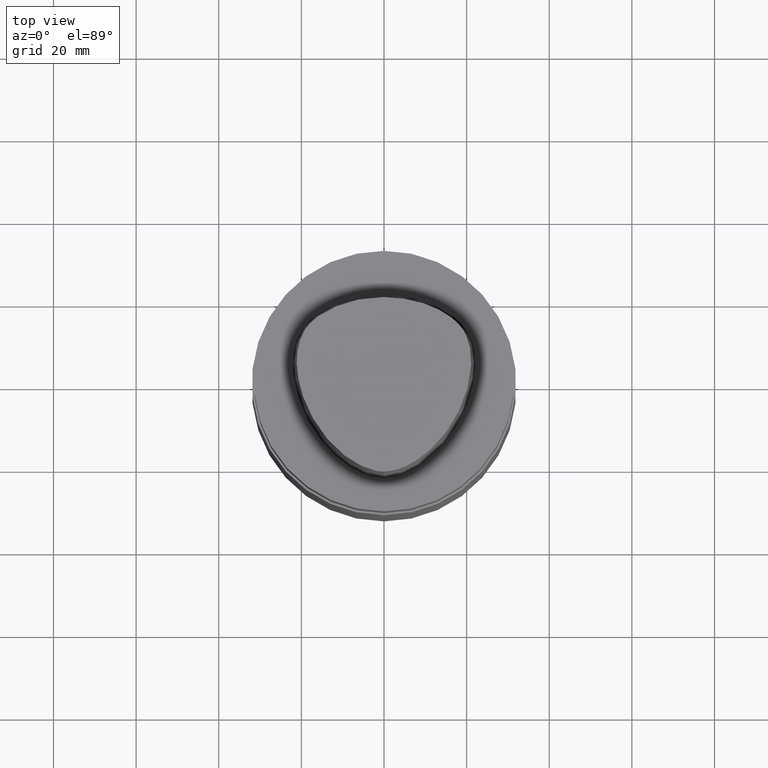
[diagram: clean part render]
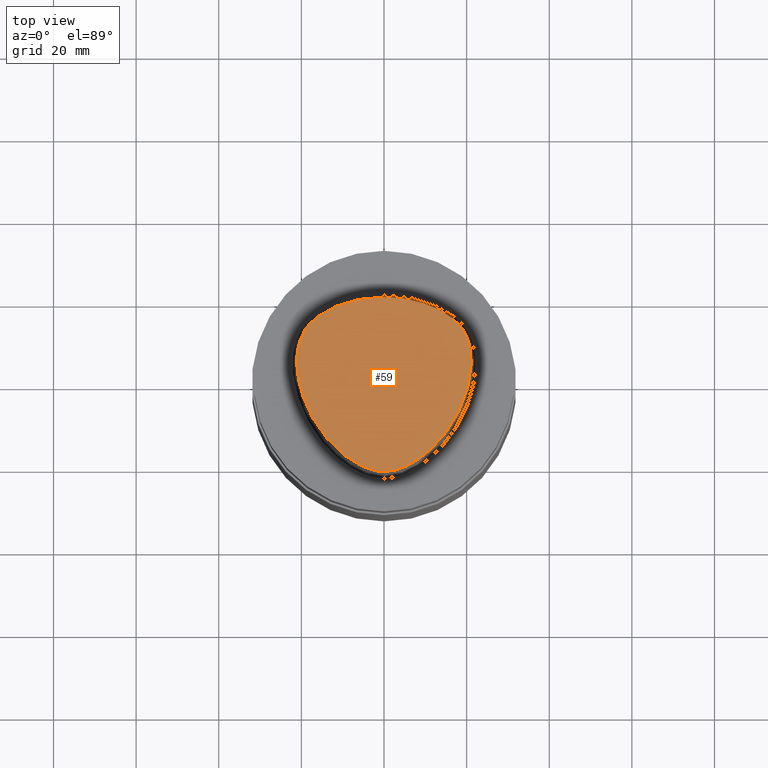
[diagram: same view with one face highlighted and labeled with its STEP entity id]
A machine part, top view. The second image highlights one B-rep face of the part: STEP entity #59.
In plain terms, the highlighted planar face has unit normal (-0, 0, 1).
Its self-contained STEP definition (entity closure, byte-faithful):
#56=EDGE_CURVE('Unnamed[1]',#136,#133,#137,.T.);
#59=ADVANCED_FACE('Unnamed[1]',(#140),#141,.T.);
#94=EDGE_CURVE('Unnamed[1]',#133,#136,#188,.T.);
#133=VERTEX_POINT('',#260);
#136=VERTEX_POINT('',#265);
#137=B_SPLINE_CURVE_WITH_KNOTS('',3,(#266,#267,#268,#269,#270,#271,#272,#273,#274,#275,#276,#277,#278,#279,#280,#281),.UNSPECIFIED.,.F.,.F.,(4,1,1,1,1,1,1,1,1,1,1,1,1,4),(0.0,0.447924670568964,0.9388024242536,1.50591409090711,2.07314340012323,2.72424957442464,3.2253501842849,3.80982102049476,4.34867996267067,4.85900173381144,5.37972031856977,6.03459825488646,6.61113557741484,6.61513393087395),.UNSPECIFIED.);
#140=FACE_OUTER_BOUND('',#285,.T.);
#141=PLANE('',#286);
#188=B_SPLINE_CURVE_WITH_KNOTS('',3,(#419,#420,#421,#422,#423,#424,#425,#426,#427,#428,#429,#430,#431,#432,#433,#434),.UNSPECIFIED.,.F.,.F.,(4,1,1,1,1,1,1,1,1,1,1,1,1,4),(6.61513393087476,6.99917207152274,7.48193246986995,7.96289324787093,8.45540287038584,9.10291653679981,9.67129810936083,10.1618749681153,10.6358867802489,11.1080734988593,11.6043706019633,12.09451993853,12.6985979284494,13.2302678617486),.UNSPECIFIED.);
#260=CARTESIAN_POINT('',(0.038736923393866,-22.5191997536361,38.0));
#265=CARTESIAN_POINT('',(-0.001218547003662,19.7276821925089,38.0));
#266=CARTESIAN_POINT('',(-0.001218547003662,19.7276821925089,38.0));
#267=CARTESIAN_POINT('',(-1.49408492138443,19.6585333605309,38.0));
#268=CARTESIAN_POINT('',(-4.62297391420352,19.513604770166,38.0));
#269=CARTESIAN_POINT('',(-9.56160616752212,18.4291575730197,38.0));
#270=CARTESIAN_POINT('',(-14.5427684976927,16.2697452580488,38.0));
#271=CARTESIAN_POINT('',(-19.4315563551602,12.5302108980807,38.0));
#272=CARTESIAN_POINT('',(-21.306358833612,6.76352894547076,38.0));
#273=CARTESIAN_POINT('',(-21.0724946936277,0.957075236984038,38.0));
#274=CARTESIAN_POINT('',(-19.7876470880144,-4.34628503581652,38.0));
#275=CARTESIAN_POINT('',(-17.5396999600095,-9.33314444653089,38.0));
#276=CARTESIAN_POINT('',(-14.645447733857,-13.7185760345629,38.0));
#277=CARTESIAN_POINT('',(-10.7996726536643,-17.856257282137,38.0));
#278=CARTESIAN_POINT('',(-6.00479510196376,-21.2687382067675,38.0));
#279=CARTESIAN_POINT('',(-1.90747171908525,-22.5250621415864,38.0));
#280=CARTESIAN_POINT('',(0.025424107066464,-22.5192678176378,38.0));
#281=CARTESIAN_POINT('',(0.038736923394311,-22.519199753636,38.0));
#285=EDGE_LOOP('',(#529,#530));
#286=AXIS2_PLACEMENT_3D('',#531,#532,#533);
#419=CARTESIAN_POINT('',(0.038736923394311,-22.519199753636,38.0));
#420=CARTESIAN_POINT('',(1.31742058183662,-22.512662269405,38.0));
#421=CARTESIAN_POINT('',(4.2093773447498,-21.9116226439989,38.0));
#422=CARTESIAN_POINT('',(8.20895504542113,-19.7798683845067,38.0));
#423=CARTESIAN_POINT('',(11.9784633234593,-16.681663904162,38.0));
#424=CARTESIAN_POINT('',(15.5308821579362,-12.5807487594113,38.0));
#425=CARTESIAN_POINT('',(18.4566248438667,-7.64932246015528,38.0));
#426=CARTESIAN_POINT('',(20.4036090752029,-2.27012499825289,38.0));
#427=CARTESIAN_POINT('',(21.2357187429189,2.79891401173156,38.0));
#428=CARTESIAN_POINT('',(21.0811206267748,7.62543090736657,38.0));
#429=CARTESIAN_POINT('',(19.3383577336563,12.2772250726194,38.0));
#430=CARTESIAN_POINT('',(15.5796322014404,15.5799672120682,38.0));
#431=CARTESIAN_POINT('',(10.8392956074438,17.9834601687347,38.0));
#432=CARTESIAN_POINT('',(5.56068045850571,19.4586143858472,38.0));
#433=CARTESIAN_POINT('',(1.77223893711014,19.6418877095654,38.0));
#434=CARTESIAN_POINT('',(-0.001218367817519,19.7276822012873,38.0));
#529=ORIENTED_EDGE('',*,*,#56,.T.);
#530=ORIENTED_EDGE('',*,*,#94,.T.);
#531=CARTESIAN_POINT('',(0.008647668684817,1.77491953635526,38.0));
#532=DIRECTION('',(-0.0,2.95577857036584E-049,1.0));
#533=DIRECTION('',(1.0,0.0,0.0));